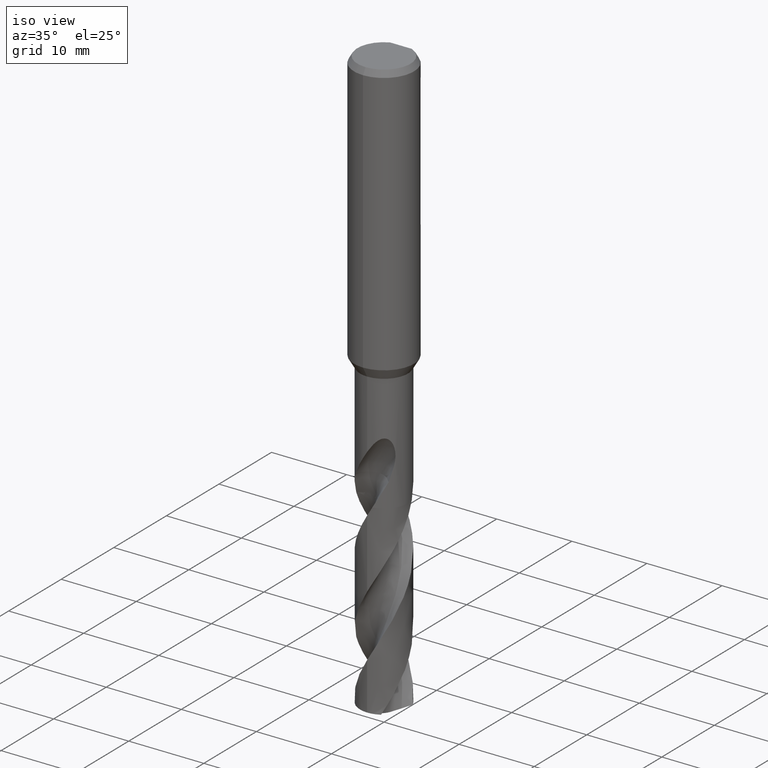
[diagram: clean part render]
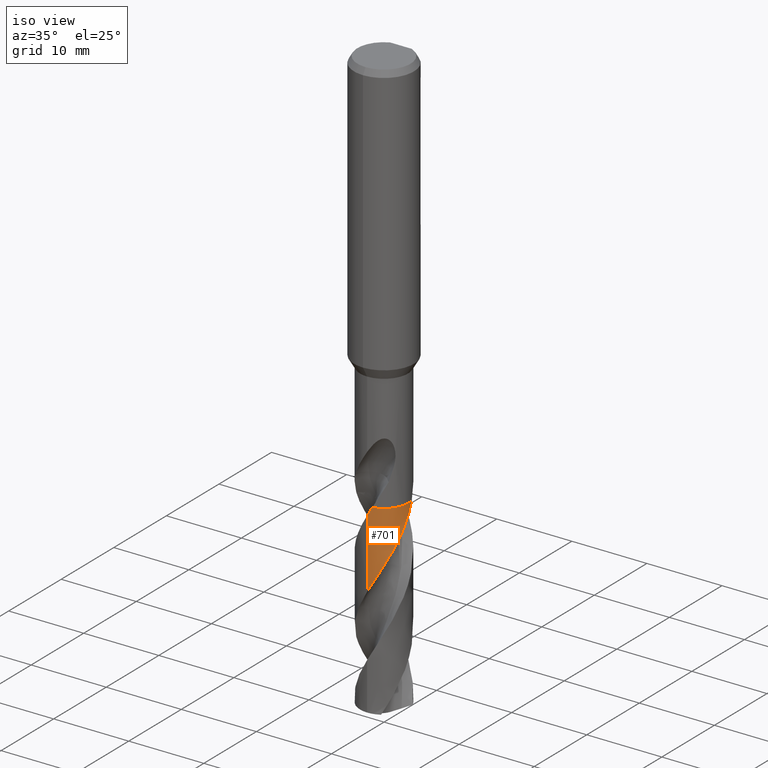
[diagram: same view with one face highlighted and labeled with its STEP entity id]
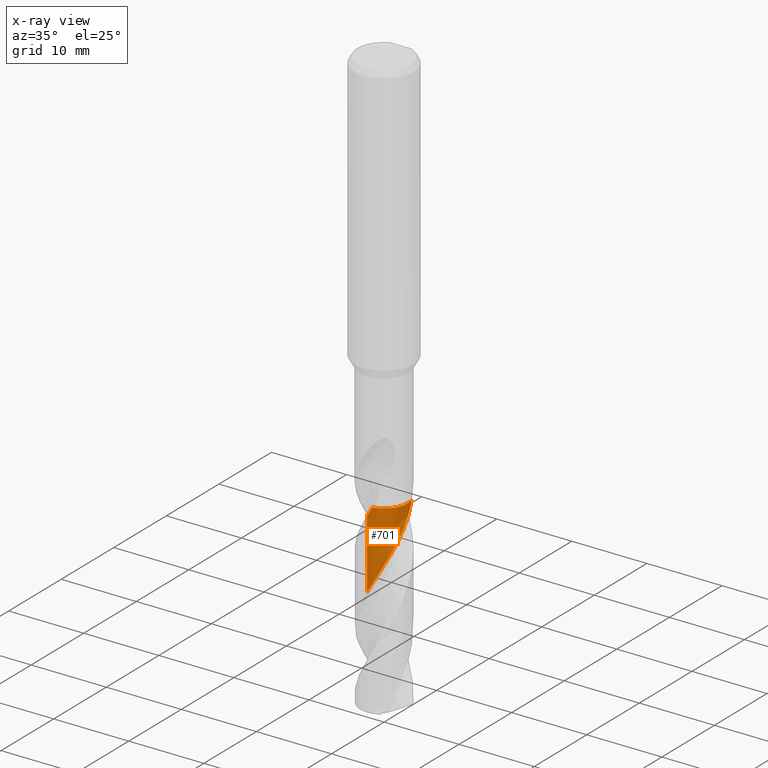
[diagram: x-ray of the same camera — body ghosted, the highlighted face saturated]
A machine part, iso view. The second image highlights one B-rep face of the part: STEP entity #701.
The next image is the same camera in x-ray: the body ghosted, the highlighted face saturated — about 0% of this face is hidden behind the body in this view.
In plain terms, the highlighted conical surface has half-angle 0 deg.
Its self-contained STEP definition (entity closure, byte-faithful):
#415=VERTEX_POINT('',#989);
#437=VERTEX_POINT('',#1013);
#457=VERTEX_POINT('',#1035);
#477=VERTEX_POINT('',#1056);
#497=EDGE_CURVE('',#437,#515,#1079,.T.);
#499=EDGE_CURVE('',#515,#415,#1081,.T.);
#515=VERTEX_POINT('',#1097);
#601=EDGE_CURVE('',#457,#477,#1191,.T.);
#603=VERTEX_POINT('',#1193);
#673=EDGE_CURVE('',#457,#603,#1269,.T.);
#701=ADVANCED_FACE('',(#1301),#1302,.T.);
#751=EDGE_CURVE('',#415,#603,#1353,.T.);
#827=EDGE_CURVE('',#477,#437,#1439,.T.);
#989=CARTESIAN_POINT('',(0.63302004036876,-3.13666156404166,-53.005));
#1013=CARTESIAN_POINT('',(3.07142224157608,0.89762209417538,-53.0));
#1035=CARTESIAN_POINT('',(-1.35837525862885E-015,-3.19994135975014,-63.2718160608587));
#1056=CARTESIAN_POINT('',(3.07223377162265,0.89484066015877,-53.005));
#1079=CIRCLE('',#3789,3.1999);
#1081=B_SPLINE_CURVE_WITH_KNOTS('',3,(#3792,#3793,#3794,#3795),.UNSPECIFIED.,.F.,.F.,(4,4),(0.0,0.00888873692099985),.UNSPECIFIED.);
#1097=CARTESIAN_POINT('',(0.635857877084945,-3.13608749402006,-53.0));
#1191=B_SPLINE_CURVE_WITH_KNOTS('',3,(#4617,#4618,#4619,#4620,#4621,#4622,#4623,#4624,#4625,#4626,#4627,#4628,#4629,#4630,#4631,#4632,#4633,#4634,#4635,#4636,#4637,#4638,#4639,#4640,#4641,#4642,#4643,#4644,#4645,#4646,#4647,#4648,#4649,#4650,#4651,#4652,#4653,#4654,#4655,#4656,#4657,#4658,#4659,#4660,#4661,#4662,#4663,#4664,#4665,#4666,#4667,#4668,#4669,#4670,#4671,#4672,#4673,#4674,#4675,#4676),.UNSPECIFIED.,.F.,.F.,(4,2,2,2,2,2,2,2,2,2,2,2,2,2,2,2,2,2,2,2,2,2,2,2,2,2,2,2,2,4),(0.0,1.74940168580516,2.37102620157677,3.44891704293134,4.69060823781919,5.30911320141768,6.3615110071045,7.41395978372748,8.46742253652946,9.52095836915497,10.5754969351905,11.6301060464557,12.6856990731973,13.741427588882,14.7980984115482,15.8550222040129,16.9128409252362,17.9709206835192,19.0298752600538,19.560063795228,20.0867760381169,21.1451672849526,21.6244570883841,22.0722031024696,23.2919516939695,24.3635247146283,25.4807447209579,27.154723815803,27.2595803276364,28.8268036906863),.UNSPECIFIED.);
#1193=CARTESIAN_POINT('',(-1.90539086475011E-012,-3.19990446080199,-54.1078533435553));
#1269=LINE('',#5293,#5294);
#1301=FACE_OUTER_BOUND('',#5633,.T.);
#1302=CONICAL_SURFACE('',#5634,3.19995,4.0265275283276E-006);
#1353=B_SPLINE_CURVE_WITH_KNOTS('',3,(#5796,#5797,#5798,#5799,#5800,#5801,#5802,#5803,#5804,#5805,#5806,#5807,#5808,#5809,#5810,#5811,#5812,#5813,#5814,#5815,#5816,#5817,#5818,#5819,#5820,#5821,#5822,#5823,#5824,#5825,#5826,#5827,#5828,#5829,#5830,#5831,#5832,#5833,#5834,#5835,#5836,#5837,#5838,#5839,#5840,#5841,#5842,#5843,#5844,#5845,#5846,#5847,#5848,#5849,#5850,#5851),.UNSPECIFIED.,.F.,.F.,(4,2,2,2,2,2,2,2,2,2,2,2,2,2,2,2,2,2,2,2,2,2,2,2,2,2,2,4),(0.0,0.813135742673318,2.13053201318648,3.36430138106544,4.60470296459449,4.91015056237588,6.2043029414735,7.44521724228698,8.68237007004793,9.29613997255259,10.52697080231,11.7636191897615,13.0026054024855,13.6131402704893,14.8465749680257,16.0782186465602,17.3188909023718,17.6233969620973,18.8514861752041,20.0916008118477,21.1629190691228,22.1007487171417,22.9232671905855,24.3682178169594,25.4502440379912,26.2625478347537,27.4812539766879,28.7014202592353),.UNSPECIFIED.);
#1439=B_SPLINE_CURVE_WITH_KNOTS('',3,(#7482,#7483,#7484,#7485),.UNSPECIFIED.,.F.,.F.,(4,4),(0.0,0.0104464960307852),.UNSPECIFIED.);
#3789=AXIS2_PLACEMENT_3D('',#7797,#7798,#7799);
#3792=CARTESIAN_POINT('',(0.635857877084936,-3.13608749402005,-53.0));
#3793=CARTESIAN_POINT('',(0.634402730380664,-3.13638254303652,-53.0025640482612));
#3794=CARTESIAN_POINT('',(0.632947390073906,-3.13667657688521,-53.0051281024802));
#3795=CARTESIAN_POINT('',(0.63149185720702,-3.13696959540579,-53.0076921644588));
#4617=CARTESIAN_POINT('',(-1.56506095468349,2.79116180256989,-77.8352952503482));
#4618=CARTESIAN_POINT('',(-1.82056189952305,2.64789492025638,-77.3310740613555));
#4619=CARTESIAN_POINT('',(-2.05438091947671,2.47074181230181,-76.8219938620677));
#4620=CARTESIAN_POINT('',(-2.33414642567501,2.19145117093639,-76.1385492930798));
#4621=CARTESIAN_POINT('',(-2.40389641523182,2.11470505053335,-75.9597086357964));
#4622=CARTESIAN_POINT('',(-2.58408358917576,1.89598379383303,-75.4698593081366));
#4623=CARTESIAN_POINT('',(-2.68645992746389,1.74791315564343,-75.1583103774878));
#4624=CARTESIAN_POINT('',(-2.87896756302511,1.41222184044094,-74.4897578073985));
#4625=CARTESIAN_POINT('',(-2.96422837918243,1.22310901790429,-74.13418246528));
#4626=CARTESIAN_POINT('',(-3.06365742515048,0.929784274546089,-73.5977488905093));
#4627=CARTESIAN_POINT('',(-3.09196133966085,0.830825089930273,-73.4189010928245));
#4628=CARTESIAN_POINT('',(-3.15548462436283,0.559915675533027,-72.9369879470386));
#4629=CARTESIAN_POINT('',(-3.18144723528347,0.386131897978128,-72.6350300220246));
#4630=CARTESIAN_POINT('',(-3.20459348047296,0.0356698075118782,-72.0284803354262));
#4631=CARTESIAN_POINT('',(-3.20170325239504,-0.140009170144339,-71.7242620429689));
#4632=CARTESIAN_POINT('',(-3.1672885944811,-0.488705148103939,-71.1175095062845));
#4633=CARTESIAN_POINT('',(-3.13575688950904,-0.661579889973014,-70.815529310293));
#4634=CARTESIAN_POINT('',(-3.04452304919486,-1.00076334454481,-70.2089593396079));
#4635=CARTESIAN_POINT('',(-2.98506973988889,-1.16611323240274,-69.9047334575143));
#4636=CARTESIAN_POINT('',(-2.8399239507886,-1.48503742120026,-69.2979677162589));
#4637=CARTESIAN_POINT('',(-2.75426869760921,-1.63848049916324,-68.9959886203073));
#4638=CARTESIAN_POINT('',(-2.55841314696177,-1.93005830733188,-68.389412743656));
#4639=CARTESIAN_POINT('',(-2.44876026493202,-2.06736136246128,-68.0851840328323));
#4640=CARTESIAN_POINT('',(-2.20844728570771,-2.32232900916879,-67.4784269205504));
#4641=CARTESIAN_POINT('',(-2.07785304363626,-2.43989561633788,-67.1764560539363));
#4642=CARTESIAN_POINT('',(-1.79836368084811,-2.65262968522628,-66.5698839224926));
#4643=CARTESIAN_POINT('',(-1.65025499329053,-2.74718376940681,-66.2656542546339));
#4644=CARTESIAN_POINT('',(-1.3405195236808,-2.91091166654351,-65.6589038535819));
#4645=CARTESIAN_POINT('',(-1.17897360493,-2.98002300278667,-65.3569420119111));
#4646=CARTESIAN_POINT('',(-0.845761629098001,-3.09114901952402,-64.7503694292697));
#4647=CARTESIAN_POINT('',(-0.675038584333436,-3.13283283445435,-64.4461424075125));
#4648=CARTESIAN_POINT('',(-0.329008850846181,-3.18780616548245,-63.8393726386938));
#4649=CARTESIAN_POINT('',(-0.153795058338362,-3.20106511268424,-63.5374065153634));
#4650=CARTESIAN_POINT('',(0.197462113490992,-3.1986683292185,-62.9308234522167));
#4651=CARTESIAN_POINT('',(0.372504871709231,-3.18300310788774,-62.6265924619771));
#4652=CARTESIAN_POINT('',(0.717732864773356,-3.12332567695176,-62.0198244626724));
#4653=CARTESIAN_POINT('',(0.887835087009329,-3.07931317061317,-61.7178648332935));
#4654=CARTESIAN_POINT('',(1.13666041521093,-2.99254169241497,-61.2627892306457));
#4655=CARTESIAN_POINT('',(1.21834028284516,-2.96022053644626,-61.1110968671854));
#4656=CARTESIAN_POINT('',(1.37810716727067,-2.88928555038484,-60.808172885546));
#4657=CARTESIAN_POINT('',(1.4561894188708,-2.85073205025519,-60.6568773216729));
#4658=CARTESIAN_POINT('',(1.68654343595413,-2.72503548980594,-60.2023530557277));
#4659=CARTESIAN_POINT('',(1.83335363735631,-2.62853318150284,-59.9004132352927));
#4660=CARTESIAN_POINT('',(2.03428794368045,-2.47134017842553,-59.459887648553));
#4661=CARTESIAN_POINT('',(2.09500286583527,-2.42007890662199,-59.3226763328109));
#4662=CARTESIAN_POINT('',(2.20851075609156,-2.31678459541102,-59.0569004331511));
#4663=CARTESIAN_POINT('',(2.26150310446541,-2.26508051475308,-58.9282909624492));
#4664=CARTESIAN_POINT('',(2.45192715319516,-2.06595549207477,-58.4505857590268));
#4665=CARTESIAN_POINT('',(2.57731790593835,-1.90729119616895,-58.1034724692769));
#4666=CARTESIAN_POINT('',(2.78344842788653,-1.58852333595089,-57.4478255951528));
#4667=CARTESIAN_POINT('',(2.86715816887969,-1.43185633826785,-57.1401826226649));
#4668=CARTESIAN_POINT('',(3.01060107311374,-1.09990938759051,-56.5140202776695));
#4669=CARTESIAN_POINT('',(3.06908843832755,-0.924306580562229,-56.1962558525533));
#4670=CARTESIAN_POINT('',(3.17657861677935,-0.474931024576861,-55.3984626156614));
#4671=CARTESIAN_POINT('',(3.20575621342461,-0.198299968132485,-54.9189333010773));
#4672=CARTESIAN_POINT('',(3.19851025441858,0.096071814027191,-54.410535951579));
#4673=CARTESIAN_POINT('',(3.19794191988653,0.113421520284533,-54.380570056143));
#4674=CARTESIAN_POINT('',(3.18662695223488,0.390023036458439,-53.9027095638811));
#4675=CARTESIAN_POINT('',(3.14452051483325,0.646692107841528,-53.451054829211));
#4676=CARTESIAN_POINT('',(3.07220929770678,0.894924670593776,-53.0048489841364));
#5293=CARTESIAN_POINT('',(3.91875009783225E-016,-3.19995,-65.4176476251741));
#5294=VECTOR('',#7961,1.0);
#5633=EDGE_LOOP('',(#7997,#7998,#7999,#8000,#8001,#8002));
#5634=AXIS2_PLACEMENT_3D('',#8003,#8004,#8005);
#5796=CARTESIAN_POINT('',(0.633612031397591,-3.13654202994907,-53.0039570376097));
#5797=CARTESIAN_POINT('',(0.500477963577643,-3.16343737154314,-53.2385151046419));
#5798=CARTESIAN_POINT('',(0.365937555210103,-3.18179408635588,-53.4730731272111));
#5799=CARTESIAN_POINT('',(0.0119156572803172,-3.20740031486611,-54.0880222832013));
#5800=CARTESIAN_POINT('',(-0.208206462772712,-3.20068307909334,-54.4666158312621));
#5801=CARTESIAN_POINT('',(-0.630117539473112,-3.14400262892119,-55.2025188275223));
#5802=CARTESIAN_POINT('',(-0.830927617766026,-3.09697862932025,-55.5578187386696));
#5803=CARTESIAN_POINT('',(-1.22156998049869,-2.96478640368693,-56.2717434146614));
#5804=CARTESIAN_POINT('',(-1.41063537045059,-2.87965303677494,-56.6286651038697));
#5805=CARTESIAN_POINT('',(-1.63447523396846,-2.75146388071436,-57.0745455404432));
#5806=CARTESIAN_POINT('',(-1.67808201988467,-2.72508791086321,-57.1626040786204));
#5807=CARTESIAN_POINT('',(-1.90303441903783,-2.58157759867479,-57.6240886441522));
#5808=CARTESIAN_POINT('',(-2.07283758885135,-2.44733475275721,-57.9970383541609));
#5809=CARTESIAN_POINT('',(-2.37643083806345,-2.15289156367623,-58.7284687992926));
#5810=CARTESIAN_POINT('',(-2.51066001842787,-1.9947215330319,-59.0853480422279));
#5811=CARTESIAN_POINT('',(-2.74628266150486,-1.65530013883934,-59.8004824053836));
#5812=CARTESIAN_POINT('',(-2.84730484321369,-1.47479612511852,-60.1566834961054));
#5813=CARTESIAN_POINT('',(-2.97141624324512,-1.19194578598889,-60.6906829763111));
#5814=CARTESIAN_POINT('',(-3.00803008647695,-1.09626462682518,-60.8675697309021));
#5815=CARTESIAN_POINT('',(-3.10407743310001,-0.804001449123515,-61.3998991105963));
#5816=CARTESIAN_POINT('',(-3.14927104250552,-0.603210014588225,-61.7545612519695));
#5817=CARTESIAN_POINT('',(-3.20066989408674,-0.194681061129754,-62.4665607729713));
#5818=CARTESIAN_POINT('',(-3.20655535328416,0.0120106238719696,-62.8223921043468));
#5819=CARTESIAN_POINT('',(-3.17846450190477,0.423891801581699,-63.5369185157736));
#5820=CARTESIAN_POINT('',(-3.14446842182378,0.628267759507902,-63.8936072658254));
#5821=CARTESIAN_POINT('',(-3.06459508702596,0.926442020945141,-64.4272644292335));
#5822=CARTESIAN_POINT('',(-3.03355290940395,1.02351543834456,-64.6033068058838));
#5823=CARTESIAN_POINT('',(-2.92602095188088,1.31163663297615,-65.1355198445212));
#5824=CARTESIAN_POINT('',(-2.83564814254706,1.49705004966891,-65.4908554549556));
#5825=CARTESIAN_POINT('',(-2.62061157456593,1.8477958669864,-66.2021904154044));
#5826=CARTESIAN_POINT('',(-2.49657152504583,2.01222111594126,-66.5567703634445));
#5827=CARTESIAN_POINT('',(-2.21778844694867,2.31602177561094,-67.2703773239321));
#5828=CARTESIAN_POINT('',(-2.06337611209716,2.45460758779505,-67.6274839109698));
#5829=CARTESIAN_POINT('',(-1.85565205461518,2.60746756181636,-68.0733511365941));
#5830=CARTESIAN_POINT('',(-1.8140167688569,2.63660286599451,-68.1611914221332));
#5831=CARTESIAN_POINT('',(-1.60109701188641,2.77817001896534,-68.6035360330195));
#5832=CARTESIAN_POINT('',(-1.4199424940995,2.87498544240428,-68.9575685696711));
#5833=CARTESIAN_POINT('',(-1.03971152652769,3.03341770381504,-69.669936477078));
#5834=CARTESIAN_POINT('',(-0.841453398117011,3.09427544046009,-70.0266932774889));
#5835=CARTESIAN_POINT('',(-0.4636746050112,3.17123835085476,-70.6939581433198));
#5836=CARTESIAN_POINT('',(-0.285831976376401,3.1921940748165,-71.0027300317945));
#5837=CARTESIAN_POINT('',(0.0493513114240149,3.2034215316466,-71.5825916735399));
#5838=CARTESIAN_POINT('',(0.205925294530548,3.19717285064462,-71.8527373410393));
#5839=CARTESIAN_POINT('',(0.497692960542354,3.16401421321733,-72.3609309521871));
#5840=CARTESIAN_POINT('',(0.632916235988302,3.13976514962217,-72.598215414396));
#5841=CARTESIAN_POINT('',(1.00032763399755,3.04916035948632,-73.2527189437349));
#5842=CARTESIAN_POINT('',(1.22711367301209,2.96515907551195,-73.6679695502544));
#5843=CARTESIAN_POINT('',(1.60335714372017,2.77519868390772,-74.3975415978718));
#5844=CARTESIAN_POINT('',(1.75735383829922,2.68034467959724,-74.7094187601633));
#5845=CARTESIAN_POINT('',(2.01159822482709,2.49234642888057,-75.2562016131443));
#5846=CARTESIAN_POINT('',(2.11537053206932,2.40489525199123,-75.4903553606131));
#5847=CARTESIAN_POINT('',(2.36015125717581,2.1704836838368,-76.0766540737753));
#5848=CARTESIAN_POINT('',(2.49334484676143,2.01608943495333,-76.4276228975299));
#5849=CARTESIAN_POINT('',(2.72881487645136,1.68376719199407,-77.1314769539437));
#5850=CARTESIAN_POINT('',(2.83031684822184,1.50685246169049,-77.4828408487403));
#5851=CARTESIAN_POINT('',(2.91426680449317,1.32175980882653,-77.8352952503482));
#7482=CARTESIAN_POINT('',(3.07288735117222,0.892593731730206,-53.009038711282));
#7483=CARTESIAN_POINT('',(3.07240040075762,0.894270087832089,-53.0060257086279));
#7484=CARTESIAN_POINT('',(3.07191203102552,0.895946209189908,-53.0030128045892));
#7485=CARTESIAN_POINT('',(3.07142224157608,0.897622094175362,-53.0));
#7797=CARTESIAN_POINT('',(0.0,0.0,-53.0));
#7798=DIRECTION('',(0.0,0.0,-1.0));
#7799=DIRECTION('',(0.0,1.0,0.0));
#7961=DIRECTION('',(-4.93091119501737E-022,4.02652752831672E-006,0.999999999991894));
#7997=ORIENTED_EDGE('',*,*,#673,.F.);
#7998=ORIENTED_EDGE('',*,*,#601,.T.);
#7999=ORIENTED_EDGE('',*,*,#827,.T.);
#8000=ORIENTED_EDGE('',*,*,#497,.T.);
#8001=ORIENTED_EDGE('',*,*,#499,.T.);
#8002=ORIENTED_EDGE('',*,*,#751,.T.);
#8003=CARTESIAN_POINT('',(0.0,0.0,-65.4176476251741));
#8004=DIRECTION('',(0.0,-0.0,-1.0));
#8005=DIRECTION('',(0.0,1.0,0.0));